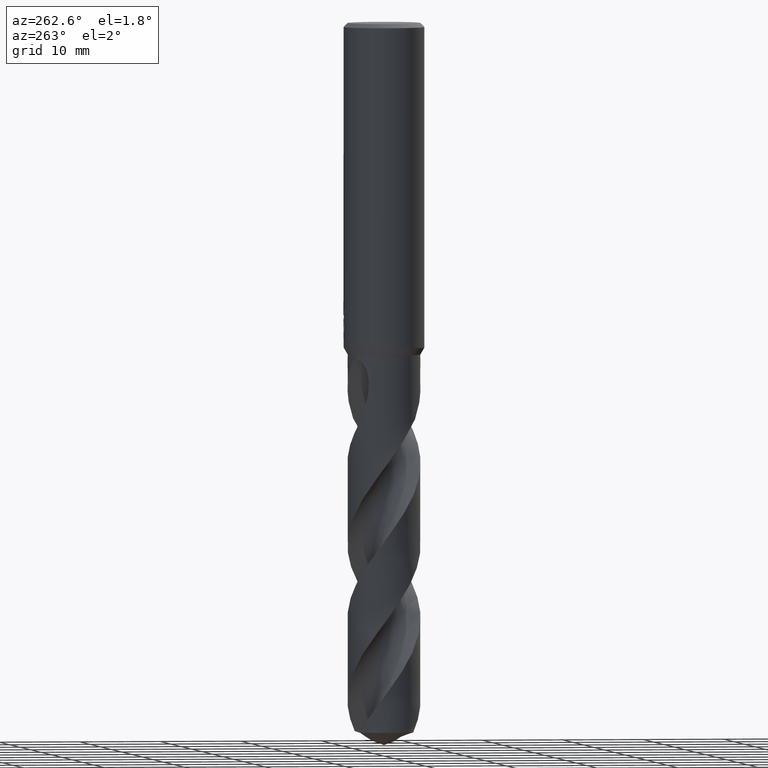
[diagram: clean part render]
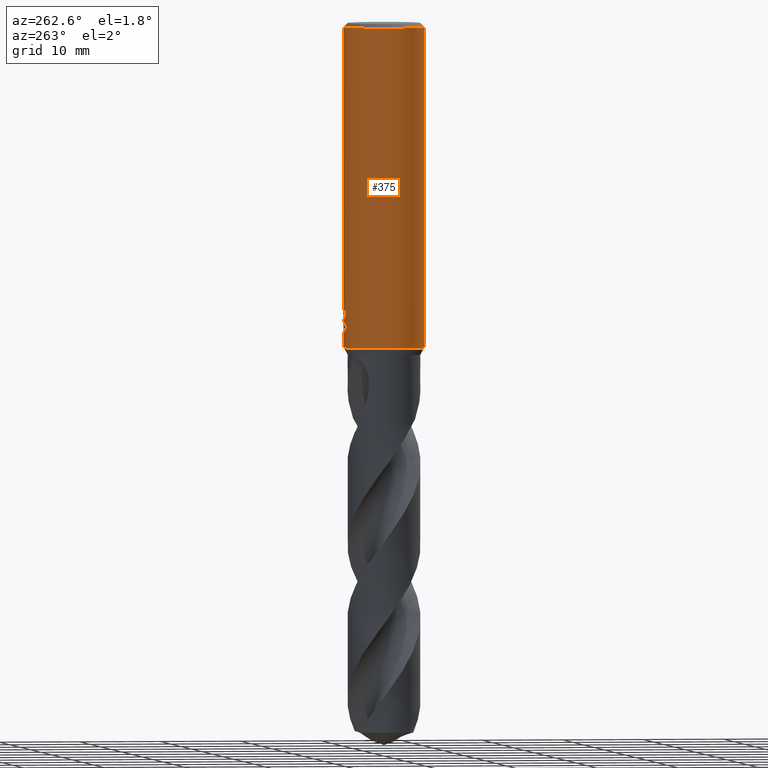
[diagram: same view with one face highlighted and labeled with its STEP entity id]
A machine part, auxiliary view. The second image highlights one B-rep face of the part: STEP entity #375.
In plain terms, the highlighted cylindrical surface (partial cylindrical patch) has radius 5 mm, axis along (-0, -0, 1).
Its self-contained STEP definition (entity closure, byte-faithful):
#285=EDGE_CURVE('',#531,#729,#781,.T.);
#287=EDGE_CURVE('',#717,#395,#783,.T.);
#325=EDGE_CURVE('',#505,#733,#823,.T.);
#337=VERTEX_POINT('',#837);
#367=EDGE_CURVE('',#733,#501,#868,.T.);
#375=ADVANCED_FACE('',(#876),#877,.T.);
#395=VERTEX_POINT('',#898);
#413=VERTEX_POINT('',#917);
#425=EDGE_CURVE('',#395,#633,#930,.T.);
#427=EDGE_CURVE('',#501,#553,#932,.T.);
#481=EDGE_CURVE('',#337,#505,#992,.T.);
#501=VERTEX_POINT('',#1013);
#505=VERTEX_POINT('',#1017);
#527=EDGE_CURVE('',#413,#531,#1043,.T.);
#531=VERTEX_POINT('',#1047);
#553=VERTEX_POINT('',#1072);
#633=VERTEX_POINT('',#1161);
#647=EDGE_CURVE('',#729,#737,#1178,.T.);
#705=EDGE_CURVE('',#737,#337,#1242,.T.);
#717=VERTEX_POINT('',#1255);
#729=VERTEX_POINT('',#1268);
#733=VERTEX_POINT('',#1272);
#737=VERTEX_POINT('',#1276);
#739=EDGE_CURVE('',#413,#633,#1278,.T.);
#745=EDGE_CURVE('',#553,#717,#1284,.T.);
#781=CIRCLE('',#1540,5.0);
#783=B_SPLINE_CURVE_WITH_KNOTS('',3,(#1543,#1544,#1545,#1546,#1547,#1548,#1549,#1550,#1551,#1552,#1553,#1554,#1555,#1556,#1557,#1558),.UNSPECIFIED.,.F.,.F.,(4,2,2,2,2,2,2,4),(5.87517564836087,6.18447732711524,6.49384941721167,6.80322150730809,7.11259359740452,7.42196568750094,7.73087791711931,8.03979014673767),.UNSPECIFIED.);
#823=CIRCLE('',#1687,5.0);
#837=CARTESIAN_POINT('',(-0.486378944383044,4.97628732314171,-35.6432837483006));
#868=B_SPLINE_CURVE_WITH_KNOTS('',3,(#1831,#1832,#1833,#1834,#1835,#1836,#1837,#1838,#1839,#1840,#1841,#1842,#1843,#1844),.UNSPECIFIED.,.F.,.F.,(4,2,2,2,2,2,4),(3.1333306003147,3.58067338374496,4.02801616717522,4.47535895060548,4.92178692976237,5.36821490891926,5.81712521768469),.UNSPECIFIED.);
#876=FACE_OUTER_BOUND('',#1854,.T.);
#877=CYLINDRICAL_SURFACE('',#1855,5.0);
#898=CARTESIAN_POINT('',(-4.2179236924284E-015,5.0,-38.0310253601033));
#917=CARTESIAN_POINT('',(6.12303176911189E-016,-5.0,-40.0));
#930=LINE('',#2905,#2906);
#932=LINE('',#2909,#2910);
#992=B_SPLINE_CURVE_WITH_KNOTS('',3,(#4143,#4144,#4145,#4146,#4147,#4148,#4149,#4150,#4151,#4152,#4153,#4154,#4155,#4156,#4157,#4158,#4159,#4160,#4161,#4162,#4163,#4164,#4165,#4166,#4167,#4168,#4169),.UNSPECIFIED.,.F.,.F.,(4,2,3,2,2,2,2,2,2,2,2,2,4),(-0.542486104801738,-0.271243052400869,0.0,0.271243052400869,0.542486104801738,0.814298814936944,1.08611152507215,1.35696845964793,1.62782539422372,1.89896433698445,2.17010327974519,2.44124222250593,2.71238116526667),.UNSPECIFIED.);
#1013=CARTESIAN_POINT('',(-1.03127136200798E-015,5.0,-36.5000801551882));
#1017=CARTESIAN_POINT('',(-0.562333990228013,4.96827741611056,-35.3171221986971));
#1043=LINE('',#4270,#4271);
#1047=CARTESIAN_POINT('',(6.12303176911189E-016,-5.0,-0.5));
#1072=CARTESIAN_POINT('',(-6.12289151258669E-016,5.0,-36.7128911336578));
#1161=CARTESIAN_POINT('',(0.0,5.0,-40.0));
#1178=LINE('',#4855,#4856);
#1242=B_SPLINE_CURVE_WITH_KNOTS('',3,(#5071,#5072,#5073,#5074,#5075,#5076,#5077,#5078,#5079,#5080,#5081,#5082,#5083,#5084,#5085,#5086,#5087,#5088,#5089,#5090,#5091,#5092,#5093,#5094,#5095,#5096,#5097),.UNSPECIFIED.,.F.,.F.,(4,2,3,2,2,2,2,2,2,2,2,2,4),(-0.542486104801738,-0.271243052400869,0.0,0.271243052400869,0.542486104801738,0.814298814936944,1.08611152507215,1.35696845964793,1.62782539422372,1.89896433698445,2.17010327974519,2.44124222250593,2.71238116526667),.UNSPECIFIED.);
#1255=CARTESIAN_POINT('',(-1.337052752443,4.81791344226778,-37.3720803908795));
#1268=CARTESIAN_POINT('',(0.0,5.0,-0.5));
#1272=CARTESIAN_POINT('',(-1.0350734039088,4.89168918151191,-35.3171221986971));
#1276=CARTESIAN_POINT('',(-9.82055749138764E-015,5.0,-36.0232688117743));
#1278=CIRCLE('',#5243,5.0);
#1284=ELLIPSE('',#5250,5.5746421602143,5.0);
#1540=AXIS2_PLACEMENT_3D('',#5261,#5262,#5263);
#1543=CARTESIAN_POINT('',(-1.37919625933141,4.80601890115366,-37.3124404256203));
#1544=CARTESIAN_POINT('',(-1.31957521374487,4.82312851403775,-37.4009601597598));
#1545=CARTESIAN_POINT('',(-1.25205684175205,4.84126211135571,-37.4821654513649));
#1546=CARTESIAN_POINT('',(-1.10836495207318,4.87616599259845,-37.6259115514073));
#1547=CARTESIAN_POINT('',(-1.0271524301646,4.89418890879516,-37.693486795378));
#1548=CARTESIAN_POINT('',(-0.850055905397219,4.9280353232664,-37.8128453591325));
#1549=CARTESIAN_POINT('',(-0.754172188044363,4.94382885968066,-37.8646375967458));
#1550=CARTESIAN_POINT('',(-0.553725999780852,4.97027232652294,-37.9480281920328));
#1551=CARTESIAN_POINT('',(-0.448990720596507,4.98092390938096,-37.9796924022892));
#1552=CARTESIAN_POINT('',(-0.237871423561604,4.99545922254228,-38.0213202804398));
#1553=CARTESIAN_POINT('',(-0.13148454027928,4.99933459384723,-38.0312723335086));
#1554=CARTESIAN_POINT('',(0.0746069172274575,5.00050365281921,-38.0312723335086));
#1555=CARTESIAN_POINT('',(0.180879006433096,4.99784409598263,-38.021349312763));
#1556=CARTESIAN_POINT('',(0.391840688075154,4.98574204084828,-37.9798000876985));
#1557=CARTESIAN_POINT('',(0.496532945230264,4.97630796240248,-37.9481849619546));
#1558=CARTESIAN_POINT('',(0.596736821506944,4.96426280185264,-37.9065357940623));
#1687=AXIS2_PLACEMENT_3D('',#5297,#5298,#5299);
#1831=CARTESIAN_POINT('',(-0.94469265800956,4.90994458032907,-34.8726918261735));
#1832=CARTESIAN_POINT('',(-1.00520381961469,4.89830199881157,-35.0184504386447));
#1833=CARTESIAN_POINT('',(-1.03510901790186,4.89168164551397,-35.1771875995894));
#1834=CARTESIAN_POINT('',(-1.03510901790186,4.89168164551397,-35.4754161218762));
#1835=CARTESIAN_POINT('',(-1.00520381961469,4.89830199881157,-35.6341532828209));
#1836=CARTESIAN_POINT('',(-0.884181496404448,4.92158716184659,-35.9256705077633));
#1837=CARTESIAN_POINT('',(-0.793087151052211,4.93783860177885,-36.058492898329));
#1838=CARTESIAN_POINT('',(-0.583306946064695,4.96698544190891,-36.2680190096183));
#1839=CARTESIAN_POINT('',(-0.4505605241988,4.98179488059623,-36.3589053581256));
#1840=CARTESIAN_POINT('',(-0.159315965562919,4.99959032724121,-36.4795914963682));
#1841=CARTESIAN_POINT('',(-0.000786407488332613,5.0022138695964,-36.5093686300866));
#1842=CARTESIAN_POINT('',(0.297528991236319,4.99338238693841,-36.5093686300866));
#1843=CARTESIAN_POINT('',(0.45644235283975,4.98128588348605,-36.4792943689047));
#1844=CARTESIAN_POINT('',(0.602168559078807,4.96360685655673,-36.4187026676641));
#1854=EDGE_LOOP('',(#5363,#5364,#5365,#5366,#5367,#5368,#5369,#5370,#5371,#5372,#5373,#5374));
#1855=AXIS2_PLACEMENT_3D('',#5375,#5376,#5377);
#2905=CARTESIAN_POINT('',(-6.12303176911189E-016,5.0,-20.25));
#2906=VECTOR('',#5410,1.0);
#2909=CARTESIAN_POINT('',(-6.12303176911189E-016,5.0,-20.25));
#2910=VECTOR('',#5411,1.0);
#4143=CARTESIAN_POINT('',(0.665122770091172,4.95556371169883,-34.8135963457478));
#4144=CARTESIAN_POINT('',(0.728735196954596,4.94702581852882,-34.8772777273236));
#4145=CARTESIAN_POINT('',(0.783964166103465,4.93829748078097,-34.9579436035979));
#4146=CARTESIAN_POINT('',(0.857301933462898,4.92609533329604,-35.1349114173306));
#4147=CARTESIAN_POINT('',(0.875400981188567,4.92277087849253,-35.2312276617865));
#4148=CARTESIAN_POINT('',(0.875400981188567,4.92277087849253,-35.3216420125868));
#4149=CARTESIAN_POINT('',(0.875400981188567,4.92277087849253,-35.4120563633871));
#4150=CARTESIAN_POINT('',(0.857301933462898,4.92609533329604,-35.5083726078429));
#4151=CARTESIAN_POINT('',(0.783964166103465,4.93829748078097,-35.6853404215757));
#4152=CARTESIAN_POINT('',(0.728735196954596,4.94702581852882,-35.76600629785));
#4153=CARTESIAN_POINT('',(0.601376746032753,4.96411953593411,-35.8935028030135));
#4154=CARTESIAN_POINT('',(0.520641197115554,4.97361399538109,-35.9488552844728));
#4155=CARTESIAN_POINT('',(0.343503822480858,4.98897870858442,-36.0223670116056));
#4156=CARTESIAN_POINT('',(0.247086219827461,4.9947129574863,-36.0405166027747));
#4157=CARTESIAN_POINT('',(0.0662849978754683,5.00037576555244,-36.0405166027747));
#4158=CARTESIAN_POINT('',(-0.0299853354073752,5.00069421157822,-36.022481035651));
#4159=CARTESIAN_POINT('',(-0.207042529230845,4.99649628332508,-35.9491606175219));
#4160=CARTESIAN_POINT('',(-0.287834149954029,4.99211780487336,-35.8938794313977));
#4161=CARTESIAN_POINT('',(-0.415469449620835,4.98311973872716,-35.7663325263823));
#4162=CARTESIAN_POINT('',(-0.470822894462521,4.97792007270922,-35.6855206130663));
#4163=CARTESIAN_POINT('',(-0.544264412763406,4.97042641093864,-35.5083690868499));
#4164=CARTESIAN_POINT('',(-0.562348199187247,4.96827580785033,-35.4120216601737));
#4165=CARTESIAN_POINT('',(-0.562348199187247,4.96827580785033,-35.2312623649999));
#4166=CARTESIAN_POINT('',(-0.544264412763406,4.97042641093864,-35.1349149383237));
#4167=CARTESIAN_POINT('',(-0.470822894462521,4.97792007270922,-34.9577634121072));
#4168=CARTESIAN_POINT('',(-0.415469449620836,4.98311973872716,-34.8769514987913));
#4169=CARTESIAN_POINT('',(-0.351618594554054,4.98762111271133,-34.8131448640467));
#4270=CARTESIAN_POINT('',(6.12303176911189E-016,-5.0,-20.25));
#4271=VECTOR('',#5523,1.0);
#4855=CARTESIAN_POINT('',(-6.12303176911189E-016,5.0,-20.25));
#4856=VECTOR('',#5716,1.0);
#5071=CARTESIAN_POINT('',(0.665122770091172,4.95556371169883,-34.8135963457478));
#5072=CARTESIAN_POINT('',(0.728735196954596,4.94702581852882,-34.8772777273236));
#5073=CARTESIAN_POINT('',(0.783964166103465,4.93829748078097,-34.9579436035979));
#5074=CARTESIAN_POINT('',(0.857301933462898,4.92609533329604,-35.1349114173306));
#5075=CARTESIAN_POINT('',(0.875400981188567,4.92277087849253,-35.2312276617865));
#5076=CARTESIAN_POINT('',(0.875400981188567,4.92277087849253,-35.3216420125868));
#5077=CARTESIAN_POINT('',(0.875400981188567,4.92277087849253,-35.4120563633871));
#5078=CARTESIAN_POINT('',(0.857301933462898,4.92609533329604,-35.5083726078429));
#5079=CARTESIAN_POINT('',(0.783964166103465,4.93829748078097,-35.6853404215757));
#5080=CARTESIAN_POINT('',(0.728735196954596,4.94702581852882,-35.76600629785));
#5081=CARTESIAN_POINT('',(0.601376746032753,4.96411953593411,-35.8935028030135));
#5082=CARTESIAN_POINT('',(0.520641197115554,4.97361399538109,-35.9488552844728));
#5083=CARTESIAN_POINT('',(0.343503822480858,4.98897870858442,-36.0223670116056));
#5084=CARTESIAN_POINT('',(0.247086219827461,4.9947129574863,-36.0405166027747));
#5085=CARTESIAN_POINT('',(0.0662849978754683,5.00037576555244,-36.0405166027747));
#5086=CARTESIAN_POINT('',(-0.0299853354073752,5.00069421157822,-36.022481035651));
#5087=CARTESIAN_POINT('',(-0.207042529230845,4.99649628332508,-35.9491606175219));
#5088=CARTESIAN_POINT('',(-0.287834149954029,4.99211780487336,-35.8938794313977));
#5089=CARTESIAN_POINT('',(-0.415469449620835,4.98311973872716,-35.7663325263823));
#5090=CARTESIAN_POINT('',(-0.470822894462521,4.97792007270922,-35.6855206130663));
#5091=CARTESIAN_POINT('',(-0.544264412763406,4.97042641093864,-35.5083690868499));
#5092=CARTESIAN_POINT('',(-0.562348199187247,4.96827580785033,-35.4120216601737));
#5093=CARTESIAN_POINT('',(-0.562348199187247,4.96827580785033,-35.2312623649999));
#5094=CARTESIAN_POINT('',(-0.544264412763406,4.97042641093864,-35.1349149383237));
#5095=CARTESIAN_POINT('',(-0.470822894462521,4.97792007270922,-34.9577634121072));
#5096=CARTESIAN_POINT('',(-0.415469449620836,4.98311973872716,-34.8769514987913));
#5097=CARTESIAN_POINT('',(-0.351618594554054,4.98762111271133,-34.8131448640467));
#5243=AXIS2_PLACEMENT_3D('',#5829,#5830,#5831);
#5250=AXIS2_PLACEMENT_3D('',#5832,#5833,#5834);
#5261=CARTESIAN_POINT('',(0.0,0.0,-0.5));
#5262=DIRECTION('',(0.0,0.0,-1.0));
#5263=DIRECTION('',(0.0,1.0,0.0));
#5297=CARTESIAN_POINT('',(0.0,0.0,-35.3171221986971));
#5298=DIRECTION('',(0.0,-0.0,1.0));
#5299=DIRECTION('',(0.0,1.0,0.0));
#5363=ORIENTED_EDGE('',*,*,#647,.T.);
#5364=ORIENTED_EDGE('',*,*,#705,.T.);
#5365=ORIENTED_EDGE('',*,*,#481,.T.);
#5366=ORIENTED_EDGE('',*,*,#325,.T.);
#5367=ORIENTED_EDGE('',*,*,#367,.T.);
#5368=ORIENTED_EDGE('',*,*,#427,.T.);
#5369=ORIENTED_EDGE('',*,*,#745,.T.);
#5370=ORIENTED_EDGE('',*,*,#287,.T.);
#5371=ORIENTED_EDGE('',*,*,#425,.T.);
#5372=ORIENTED_EDGE('',*,*,#739,.F.);
#5373=ORIENTED_EDGE('',*,*,#527,.T.);
#5374=ORIENTED_EDGE('',*,*,#285,.T.);
#5375=CARTESIAN_POINT('',(0.0,0.0,-20.25));
#5376=DIRECTION('',(-0.0,-0.0,1.0));
#5377=DIRECTION('',(0.0,1.0,0.0));
#5410=DIRECTION('',(0.0,0.0,-1.0));
#5411=DIRECTION('',(0.0,0.0,-1.0));
#5523=DIRECTION('',(-0.0,-0.0,1.0));
#5716=DIRECTION('',(0.0,0.0,-1.0));
#5829=CARTESIAN_POINT('',(0.0,0.0,-40.0));
#5830=DIRECTION('',(0.0,0.0,-1.0));
#5831=DIRECTION('',(0.0,1.0,0.0));
#5832=CARTESIAN_POINT('',(0.0,0.0,-36.7128911336578));
#5833=DIRECTION('',(-0.442195774284071,0.0,0.896918556617774));
#5834=DIRECTION('',(0.896918556617774,-0.0,0.442195774284071));